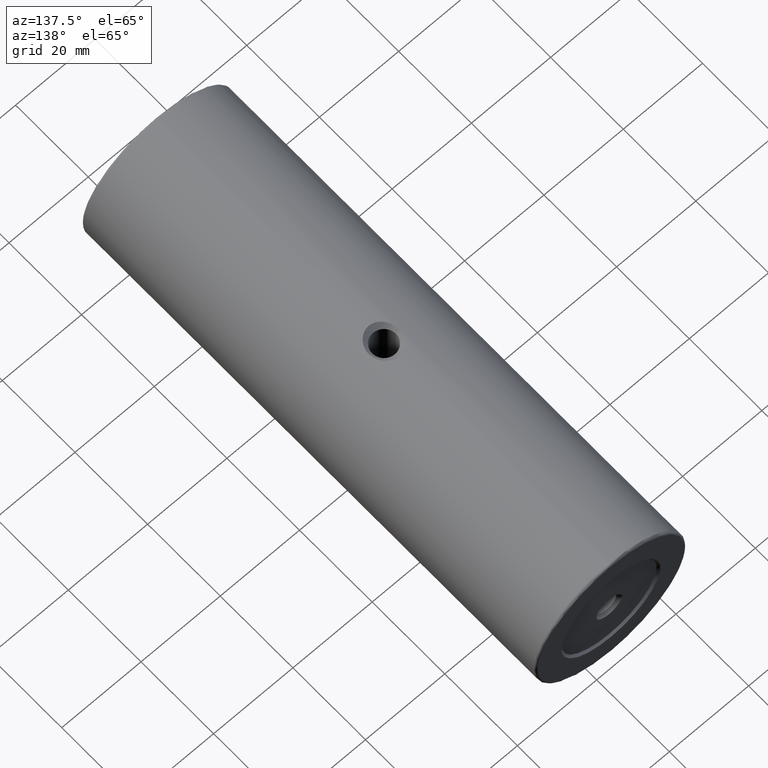
[diagram: clean part render]
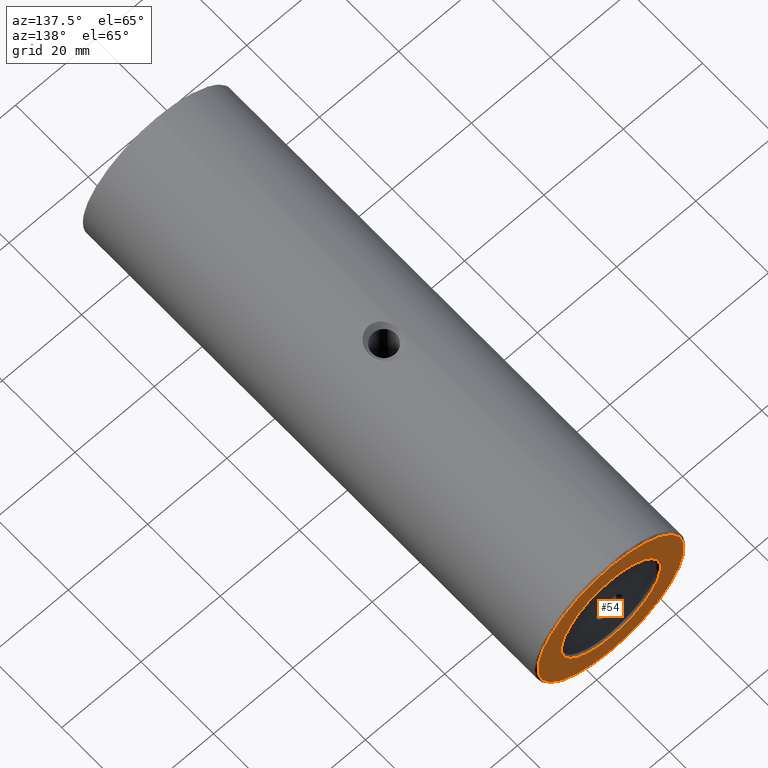
[diagram: same view with one face highlighted and labeled with its STEP entity id]
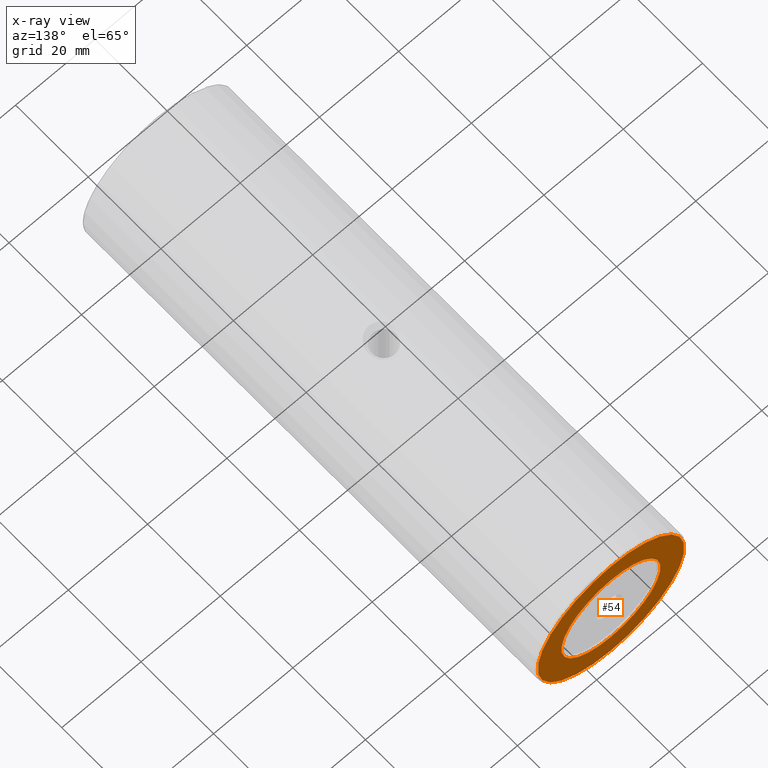
[diagram: x-ray of the same camera — body ghosted, the highlighted face saturated]
A machine part, auxiliary view. The second image highlights one B-rep face of the part: STEP entity #54.
The next image is the same camera in x-ray: the body ghosted, the highlighted face saturated — about 0% of this face is hidden behind the body in this view.
In plain terms, the highlighted planar face has unit normal (0, 1, 0).
Its self-contained STEP definition (entity closure, byte-faithful):
#30 = EDGE_CURVE ( 'NONE', #804, #83, #665, .T. ) ;
#54 = ADVANCED_FACE ( 'NONE', ( #124, #189 ), #588, .T. ) ;
#62 = AXIS2_PLACEMENT_3D ( 'NONE', #201, #662, #522 ) ;
#73 = EDGE_CURVE ( 'NONE', #83, #804, #799, .T. ) ;
#83 = VERTEX_POINT ( 'NONE', #918 ) ;
#121 = CARTESIAN_POINT ( 'NONE',  ( -85.22679983354142053, 58.23866000832570933, 400.0000000000000000 ) ) ;
#124 = FACE_BOUND ( 'NONE', #498, .T. ) ;
#155 = DIRECTION ( 'NONE',  ( 0.0000000000000000000, 1.000000000000000000, 0.0000000000000000000 ) ) ;
#189 = FACE_OUTER_BOUND ( 'NONE', #706, .T. ) ;
#196 = AXIS2_PLACEMENT_3D ( 'NONE', #743, #438, #915 ) ;
#201 = CARTESIAN_POINT ( 'NONE',  ( -85.22679983354142053, 58.23866000832570933, 400.0000000000000000 ) ) ;
#206 = DIRECTION ( 'NONE',  ( 0.0000000000000000000, 0.0000000000000000000, 1.000000000000000000 ) ) ;
#273 = VERTEX_POINT ( 'NONE', #350 ) ;
#332 = CARTESIAN_POINT ( 'NONE',  ( -85.22679983354142053, 58.23866000832570933, 387.5000000000000000 ) ) ;
#333 = ORIENTED_EDGE ( 'NONE', *, *, #73, .T. ) ;
#347 = AXIS2_PLACEMENT_3D ( 'NONE', #774, #155, #206 ) ;
#350 = CARTESIAN_POINT ( 'NONE',  ( -85.22679983354142053, 58.23866000832570933, 412.5000000000000568 ) ) ;
#369 = EDGE_CURVE ( 'NONE', #273, #561, #566, .T. ) ;
#374 = CIRCLE ( 'NONE', #390, 12.50000000000001066 ) ;
#390 = AXIS2_PLACEMENT_3D ( 'NONE', #846, #527, #923 ) ;
#438 = DIRECTION ( 'NONE',  ( 0.0000000000000000000, 1.000000000000000000, 0.0000000000000000000 ) ) ;
#443 = EDGE_CURVE ( 'NONE', #561, #273, #374, .T. ) ;
#460 = ORIENTED_EDGE ( 'NONE', *, *, #369, .F. ) ;
#498 = EDGE_LOOP ( 'NONE', ( #460, #663 ) ) ;
#518 = DIRECTION ( 'NONE',  ( 0.0000000000000000000, 0.0000000000000000000, 1.000000000000000000 ) ) ;
#522 = DIRECTION ( 'NONE',  ( 0.0000000000000000000, 0.0000000000000000000, 1.000000000000000000 ) ) ;
#527 = DIRECTION ( 'NONE',  ( 0.0000000000000000000, 1.000000000000000000, 0.0000000000000000000 ) ) ;
#530 = AXIS2_PLACEMENT_3D ( 'NONE', #121, #821, #518 ) ;
#561 = VERTEX_POINT ( 'NONE', #332 ) ;
#566 = CIRCLE ( 'NONE', #347, 12.50000000000001066 ) ;
#588 = PLANE ( 'NONE',  #196 ) ;
#642 = CARTESIAN_POINT ( 'NONE',  ( -85.22679983354142053, 58.23866000832570933, 418.5000000000000568 ) ) ;
#662 = DIRECTION ( 'NONE',  ( 0.0000000000000000000, 1.000000000000000000, 0.0000000000000000000 ) ) ;
#663 = ORIENTED_EDGE ( 'NONE', *, *, #443, .F. ) ;
#665 = CIRCLE ( 'NONE', #530, 18.50000000000001776 ) ;
#706 = EDGE_LOOP ( 'NONE', ( #832, #333 ) ) ;
#743 = CARTESIAN_POINT ( 'NONE',  ( -85.22679983354142053, 58.23866000832570933, 400.0000000000000000 ) ) ;
#774 = CARTESIAN_POINT ( 'NONE',  ( -85.22679983354142053, 58.23866000832570933, 400.0000000000000000 ) ) ;
#799 = CIRCLE ( 'NONE', #62, 18.50000000000001776 ) ;
#804 = VERTEX_POINT ( 'NONE', #642 ) ;
#821 = DIRECTION ( 'NONE',  ( 0.0000000000000000000, 1.000000000000000000, 0.0000000000000000000 ) ) ;
#832 = ORIENTED_EDGE ( 'NONE', *, *, #30, .T. ) ;
#846 = CARTESIAN_POINT ( 'NONE',  ( -85.22679983354142053, 58.23866000832570933, 400.0000000000000000 ) ) ;
#915 = DIRECTION ( 'NONE',  ( 0.0000000000000000000, -0.0000000000000000000, 1.000000000000000000 ) ) ;
#918 = CARTESIAN_POINT ( 'NONE',  ( -85.22679983354142053, 58.23866000832570933, 381.5000000000000000 ) ) ;
#923 = DIRECTION ( 'NONE',  ( 0.0000000000000000000, 0.0000000000000000000, 1.000000000000000000 ) ) ;